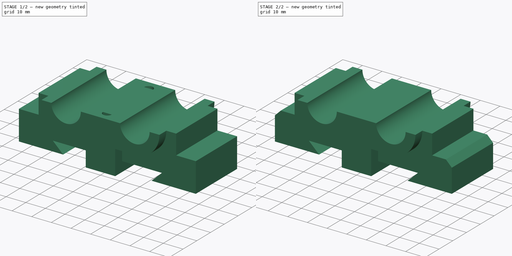
[diagram: build sequence overview — one tinted view per stage of 2, left to right]
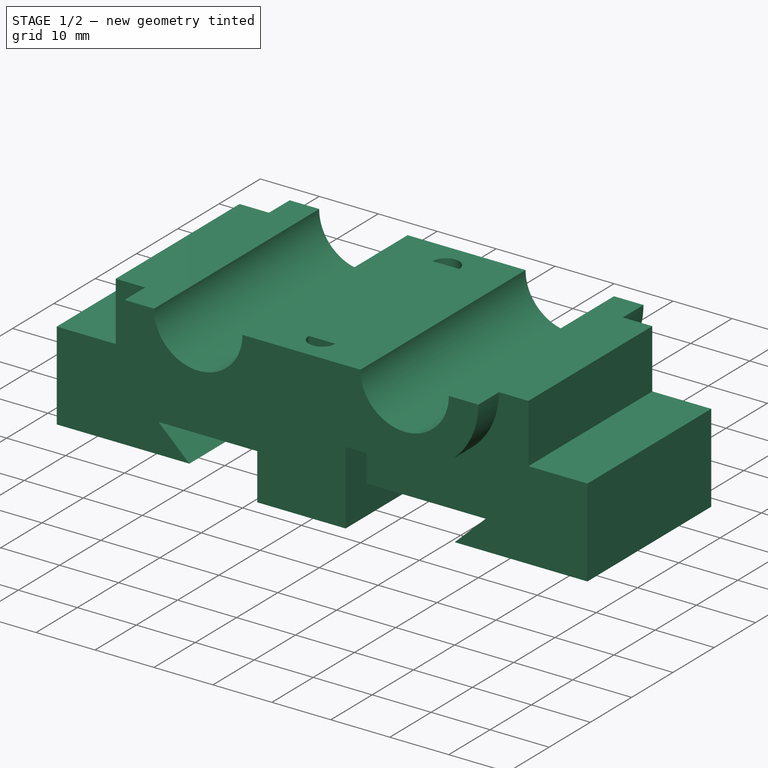
[diagram: stage 1 of 2 — iso view after this stage's code; geometry added in this stage tinted green]
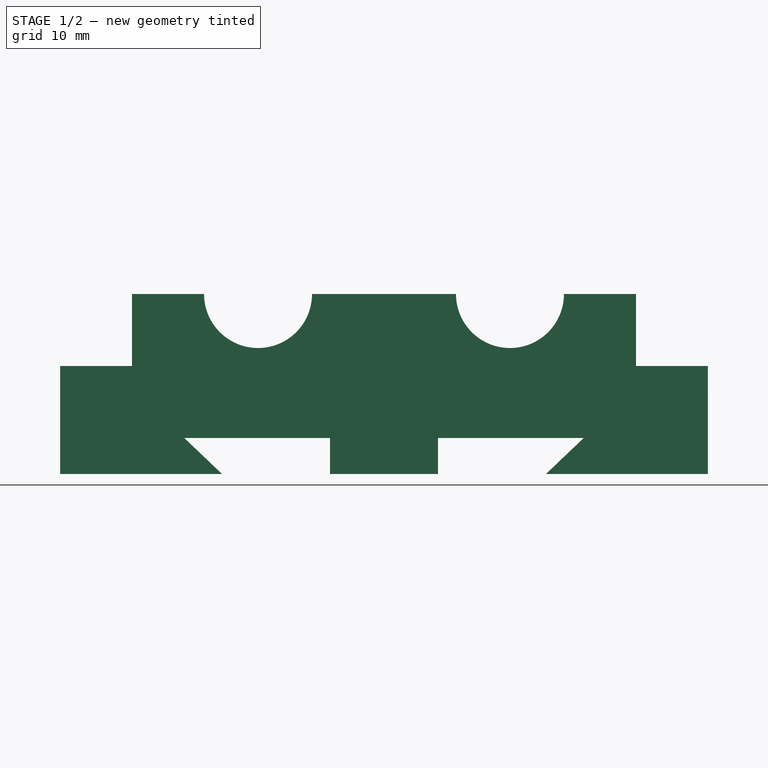
[diagram: stage 1 of 2 — front view after this stage's code; geometry added in this stage tinted green]
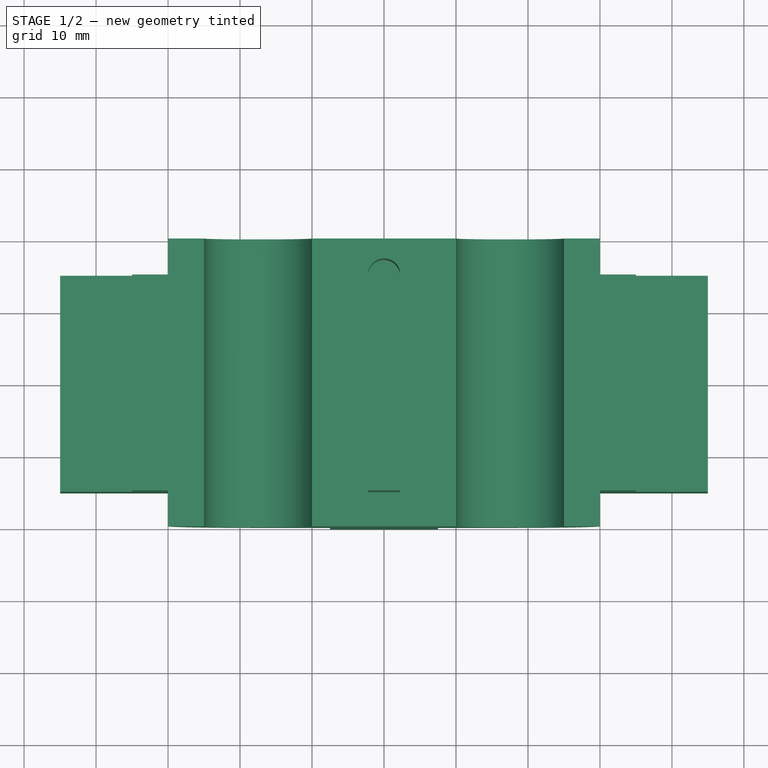
[diagram: stage 1 of 2 — top view after this stage's code; geometry added in this stage tinted green]
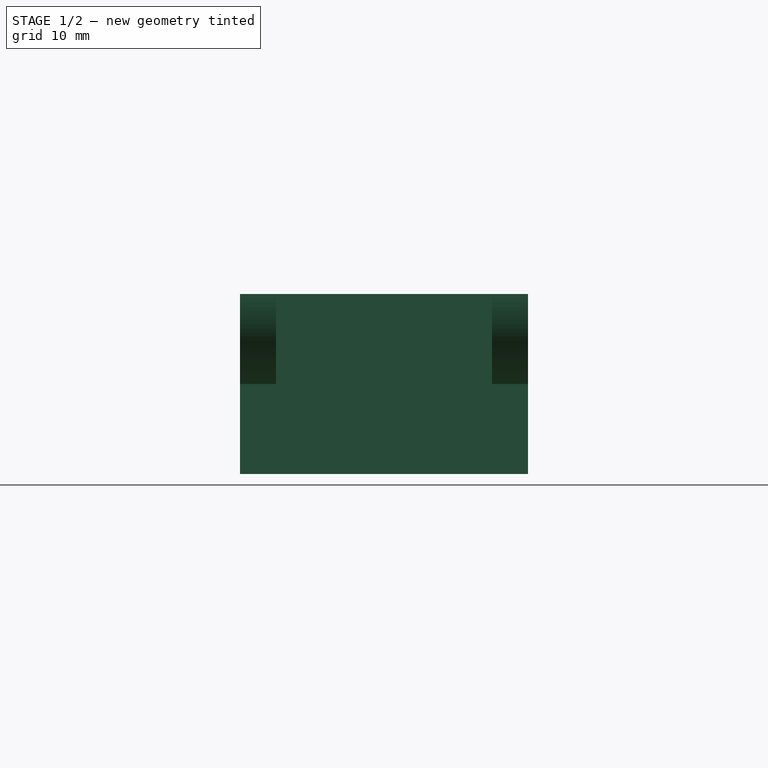
[diagram: stage 1 of 2 — right view after this stage's code; geometry added in this stage tinted green]
FCSTD DOCUMENT  (FreeCAD 0.16RUnknown)
Label: inferior
License: All rights reserved
LicenseURL: http://en.wikipedia.org/wiki/All_rights_reserved
objects: Sketcher::SketchObject×3, PartDesign::Pad×2, PartDesign::Chamfer×1, Part::Feature×1, PartDesign::Pocket×1
note: 11 computed .brp shape members not serialized (recipe doc carries the construction recipe); baked Part::Feature solids carry a one-line shape summary decoded from their .brp

FEATURE [Sketcher::SketchObject] Sketch
  Placement = pos=(0,0,0) rot=(-1,0,0;4.71239rad)
  sketch-geometry (17):
    g0: LineSegment StartX=-27.75 StartY=5 StartZ=0 EndX=27.75 EndY=5 EndZ=0
    g1: LineSegment StartX=22.5 StartY=0 StartZ=0 EndX=45 EndY=0 EndZ=0
    g2: LineSegment StartX=-22.5 StartY=0 StartZ=0 EndX=-45 EndY=0 EndZ=0
    g3: LineSegment StartX=22.5 StartY=0 StartZ=0 EndX=27.75 EndY=5 EndZ=0
    g4: LineSegment StartX=-22.5 StartY=0 StartZ=0 EndX=-27.75 EndY=5 EndZ=0
    g5: LineSegment StartX=45 StartY=0 StartZ=0 EndX=45 EndY=15 EndZ=0
    g6: LineSegment StartX=-45 StartY=0 StartZ=0 EndX=-45 EndY=15 EndZ=0
    g7: LineSegment [constr] StartX=-35 StartY=25 StartZ=0 EndX=35 EndY=25 EndZ=0
    g8: LineSegment StartX=35 StartY=25 StartZ=0 EndX=35 EndY=15 EndZ=0
    g9: LineSegment StartX=35 StartY=15 StartZ=0 EndX=45 EndY=15 EndZ=0
    g10: LineSegment StartX=-35 StartY=25 StartZ=0 EndX=-35 EndY=15 EndZ=0
    g11: LineSegment StartX=-35 StartY=15 StartZ=0 EndX=-45 EndY=15 EndZ=0
    g12: ArcOfCircle CenterX=-17.5 CenterY=25 CenterZ=0 NormalX=0 NormalY=0 NormalZ=1 Radius=7.5 StartAngle=3.14159 EndAngle=6.28319
    g13: ArcOfCircle CenterX=17.5 CenterY=25 CenterZ=0 NormalX=0 NormalY=0 NormalZ=1 Radius=7.5 StartAngle=3.14159 EndAngle=6.28319
    g14: LineSegment StartX=-10 StartY=25 StartZ=0 EndX=10 EndY=25 EndZ=0
    g15: LineSegment StartX=-25 StartY=25 StartZ=0 EndX=-35 EndY=25 EndZ=0
    g16: LineSegment StartX=25 StartY=25 StartZ=0 EndX=35 EndY=25 EndZ=0
  constraints (54):
    c: Horizontal(g0)
    c: PointOnObject(g1,g-1)
    c: PointOnObject(g1,g-1)
    c: PointOnObject(g2,g-1)
    c: PointOnObject(g2,g-1)
    c: DistanceX(g1,g1) = 22.5
    c: DistanceX(g2,g2) = 22.5
    c: DistanceX(g2,g1) = 45
    c: DistanceY(g1,g0) = 5
    c: DistanceX(g0,g0) = 55.5
    c: Coincident(g3,g1)
    c: Coincident(g3,g0)
    c: Coincident(g4,g2)
    c: Coincident(g4,g0)
    c: Symmetric(g0,g0,g-2)
    c: Coincident(g5,g1)
    c: Vertical(g5)
    c: Coincident(g6,g2)
    c: Vertical(g6)
    c: Equal(g5,g6)
    c: DistanceY(g5,g5) = 15
    c: DistanceX(g7,g7) = 70
    c: DistanceY(g2,g7) = 25
    c: Coincident(g7,g8)
    c: Vertical(g8)
    c: Coincident(g8,g9)
    c: Coincident(g9,g5)
    c: Horizontal(g9)
    c: Vertical(g10)
    c: Coincident(g11,g10)
    c: Horizontal(g11)
    c: Coincident(g11,g6)
    c: Coincident(g7,g10)
    c: Symmetric(g10,g8,g-2)
    c: Symmetric(g2,g1,g-2)
    c: PointOnObject(g12,g7)
    c: PointOnObject(g12,g7)
    c: PointOnObject(g12,g7)
    c: PointOnObject(g13,g7)
    c: PointOnObject(g13,g7)
    c: PointOnObject(g13,g7)
    c: Equal(g12,g13)
    c: Symmetric(g12,g13,g-2)
    c: Radius(g13) = 7.5
    c: DistanceX(g12,g13) = 35
    c: PointOnObject(g15,g7)
    c: PointOnObject(g14,g7)
    c: PointOnObject(g14,g7)
    c: Coincident(g15,g12)
    c: Coincident(g7,g15)
    c: Coincident(g7,g16)
    c: Coincident(g13,g16)
    c: Coincident(g12,g14)
    c: Coincident(g13,g14)
FEATURE [PartDesign::Pad] Pad
  Length = 30
  Length2 = 100
  Midplane = true
  Placement = pos=(0,0,0) rot=(-1,0,0;4.71239rad)
  Sketch = -> Sketch
  Type = 0
FEATURE [Part::Feature] Chamfer001
  shape: bbox 90 x 40 x 25 mm, 36 faces (baked)
FEATURE [Sketcher::SketchObject] Sketch002
  Placement = pos=(0,0,25) rot=(0,0,1;0rad)
  Support = -> Chamfer001 [Face33]
  sketch-geometry (6):
    g0: Circle CenterX=0 CenterY=15 CenterZ=0 NormalX=0 NormalY=0 NormalZ=1 Radius=2.25
    g1: Circle CenterX=0 CenterY=-15 CenterZ=0 NormalX=0 NormalY=0 NormalZ=1 Radius=2.25
    g2: Circle CenterX=-30 CenterY=7.5 CenterZ=0 NormalX=0 NormalY=0 NormalZ=1 Radius=2.25
    g3: Circle CenterX=-30 CenterY=-7.5 CenterZ=0 NormalX=0 NormalY=0 NormalZ=1 Radius=2.25
    g4: Circle CenterX=30 CenterY=7.5 CenterZ=0 NormalX=0 NormalY=0 NormalZ=1 Radius=2.25
    g5: Circle CenterX=30 CenterY=-7.5 CenterZ=0 NormalX=0 NormalY=0 NormalZ=1 Radius=2.25
  constraints (15):
    c: PointOnObject(g0,g-2)
    c: PointOnObject(g1,g-2)
    c: Radius(g5) = 2.25
    c: Equal(g5,g4)
    c: Equal(g5,g1)
    c: Equal(g5,g0)
    c: Equal(g5,g2)
    c: Equal(g5,g3)
    c: Symmetric(g5,g4,g-1)
    c: Symmetric(g2,g3,g-1)
    c: Symmetric(g2,g4,g-2)
    c: Symmetric(g1,g0,g-1)
    c: DistanceY(g1,g0) = 30
    c: DistanceX(g3,g5) = 60
    c: DistanceY(g3,g2) = 15
FEATURE [PartDesign::Pocket] Pocket
  Length = 15
  Sketch = -> Sketch002
  Type = 0
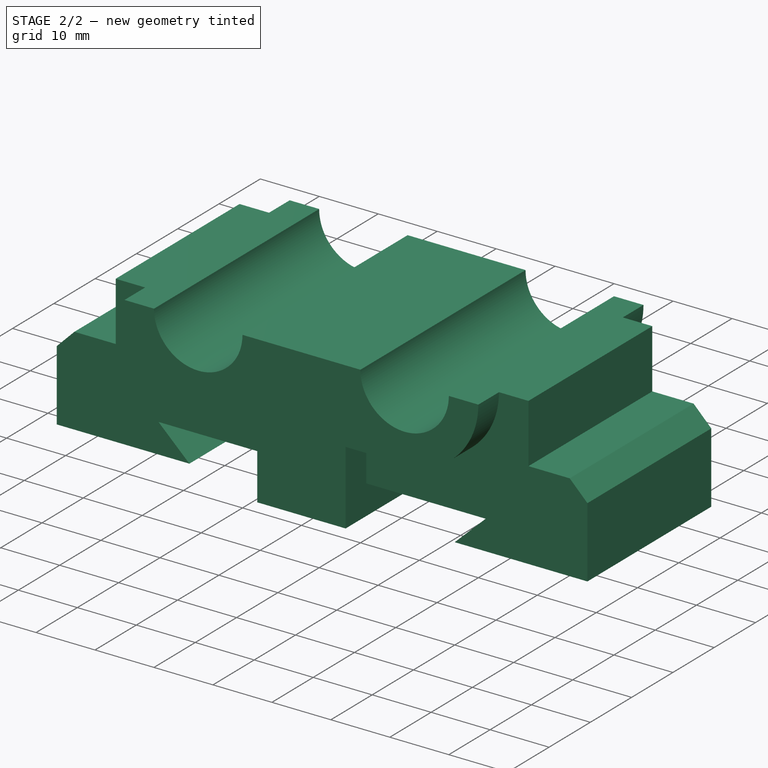
[diagram: stage 2 of 2 — iso view after this stage's code; geometry added in this stage tinted green]
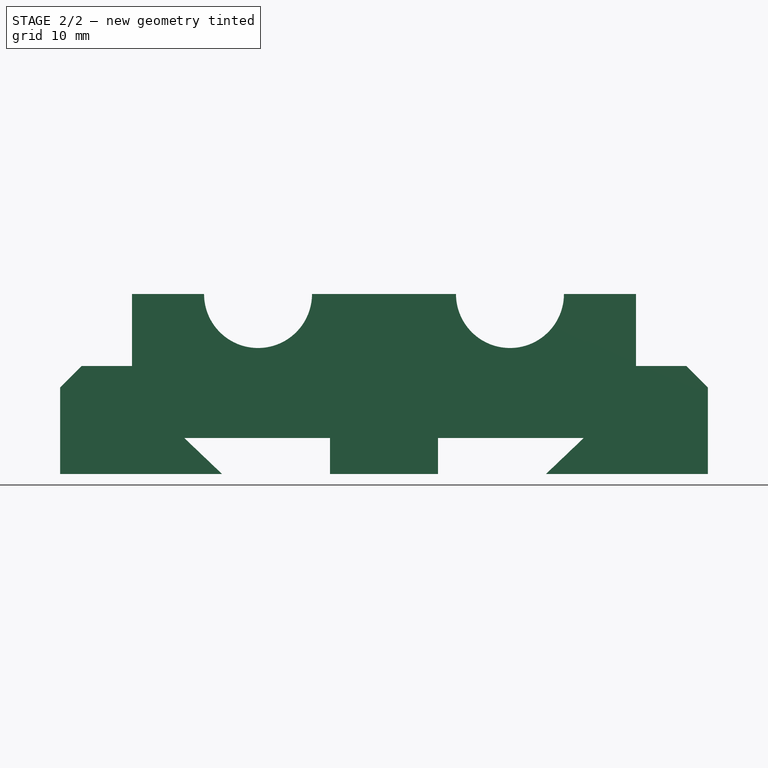
[diagram: stage 2 of 2 — front view after this stage's code; geometry added in this stage tinted green]
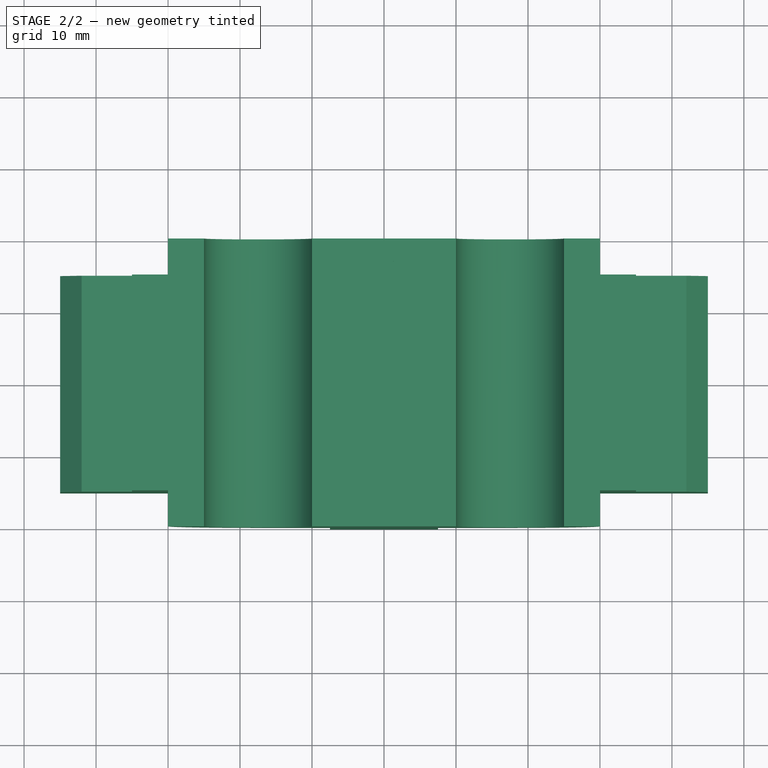
[diagram: stage 2 of 2 — top view after this stage's code; geometry added in this stage tinted green]
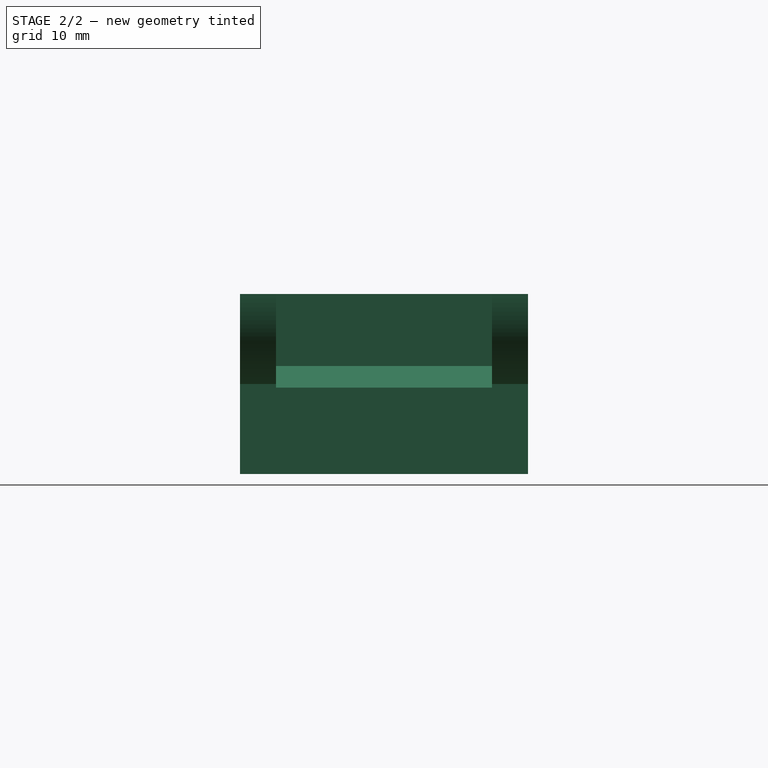
[diagram: stage 2 of 2 — right view after this stage's code; geometry added in this stage tinted green]
FEATURE [Sketcher::SketchObject] Sketch001
  ExternalGeometry = -> [Pad]
  Placement = pos=(0,-15,0) rot=(1,0,0;1.5708rad)
  Support = -> Pad [Face18]
  sketch-geometry (12):
    g0: ArcOfCircle CenterX=-17.5 CenterY=25 CenterZ=0 NormalX=0 NormalY=0 NormalZ=1 Radius=7.5 StartAngle=3.14159 EndAngle=6.28319
    g1: ArcOfCircle CenterX=17.5 CenterY=25 CenterZ=0 NormalX=0 NormalY=0 NormalZ=1 Radius=7.5 StartAngle=3.14159 EndAngle=6.28319
    g2: LineSegment StartX=-17.5 StartY=12.5 StartZ=0 EndX=-7.5 EndY=12.5 EndZ=0
    g3: ArcOfCircle CenterX=17.5 CenterY=25 CenterZ=0 NormalX=0 NormalY=0 NormalZ=1 Radius=12.5 StartAngle=4.71239 EndAngle=6.28319
    g4: ArcOfCircle CenterX=-17.5 CenterY=25 CenterZ=0 NormalX=0 NormalY=0 NormalZ=1 Radius=12.5 StartAngle=3.14159 EndAngle=4.71239
    g5: LineSegment StartX=25 StartY=25 StartZ=0 EndX=30 EndY=25 EndZ=0
    g6: LineSegment StartX=-25 StartY=25 StartZ=0 EndX=-30 EndY=25 EndZ=0
    g7: LineSegment StartX=7.5 StartY=12.5 StartZ=0 EndX=7.5 EndY=0 EndZ=0
    g8: LineSegment StartX=7.5 StartY=0 StartZ=0 EndX=-7.5 EndY=0 EndZ=0
    g9: LineSegment StartX=-7.5 StartY=0 StartZ=0 EndX=-7.5 EndY=12.5 EndZ=0
    g10: LineSegment StartX=7.5 StartY=12.5 StartZ=0 EndX=17.5 EndY=12.5 EndZ=0
    g11: LineSegment StartX=-10 StartY=25 StartZ=0 EndX=10 EndY=25 EndZ=0
  constraints (32):
    c: Coincident(g3,g1)
    c: Coincident(g3,g10)
    c: Coincident(g4,g0)
    c: Coincident(g4,g2)
    c: Tangent(g2,g4)
    c: Tangent(g3,g2)
    c: Radius(g3) = 12.5
    c: Equal(g3,g4)
    c: Coincident(g5,g1)
    c: Horizontal(g6)
    c: Horizontal(g5)
    c: Coincident(g7,g8)
    c: Coincident(g8,g9)
    c: Horizontal(g8)
    c: Vertical(g7)
    c: Vertical(g9)
    c: Symmetric(g7,g8,g-2)
    c: PointOnObject(g7,g-1)
    c: Coincident(g3,g5)
    c: Coincident(g4,g6)
    c: Coincident(g2,g9)
    c: Coincident(g10,g7)
    c: Tangent(g2,g10)
    c: DistanceX(g2,g7) = 15
    c: Coincident(g1,g11)
    c: Coincident(g0,g11)
    c: Coincident(g0,g-4)
    c: Coincident(g1,g-3)
    c: Coincident(g1,g-3)
    c: DistanceY(g0,g6) = 0
    c: Coincident(g0,g6)
    c: Coincident(g0,g-4)
FEATURE [PartDesign::Pad] Pad001
  Length = 5
  Length2 = 35
  Placement = pos=(0,0,0) rot=(-1,0,0;4.71239rad)
  Sketch = -> Sketch001
  Type = 4
FEATURE [PartDesign::Chamfer] Chamfer
  Base = -> Pad001 [Edge114,Edge25]
  Placement = pos=(0,0,0) rot=(-1,0,0;4.71239rad)
  Size = 3
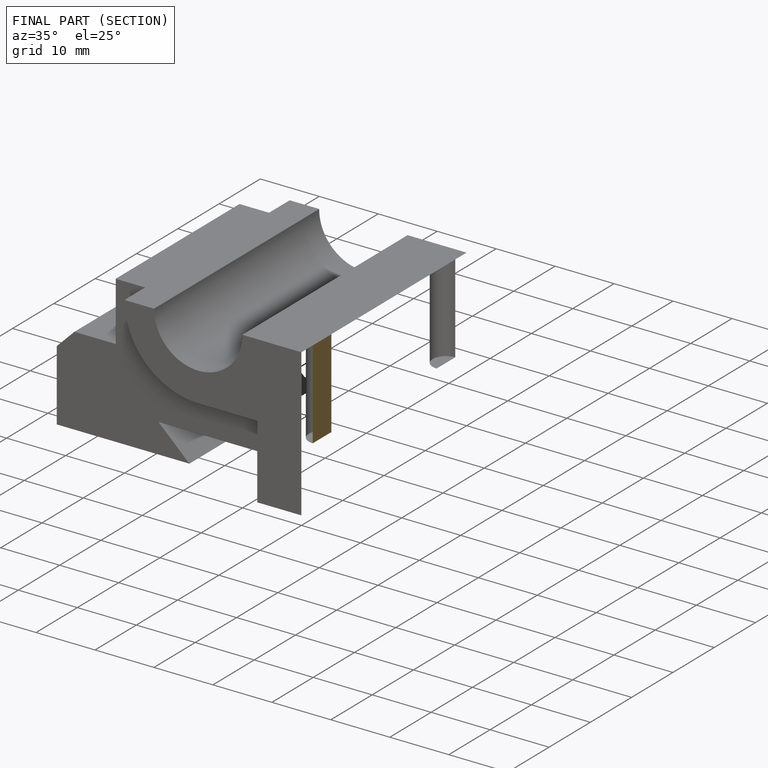
[diagram: finished part — half-section view (interior)]
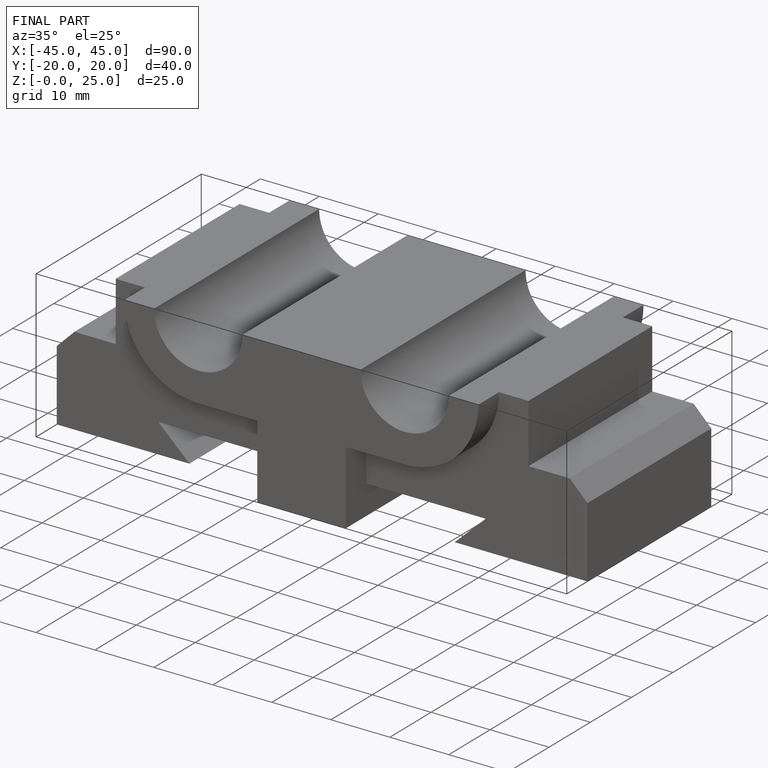
[diagram: finished part — iso view with bounding-box wireframe]
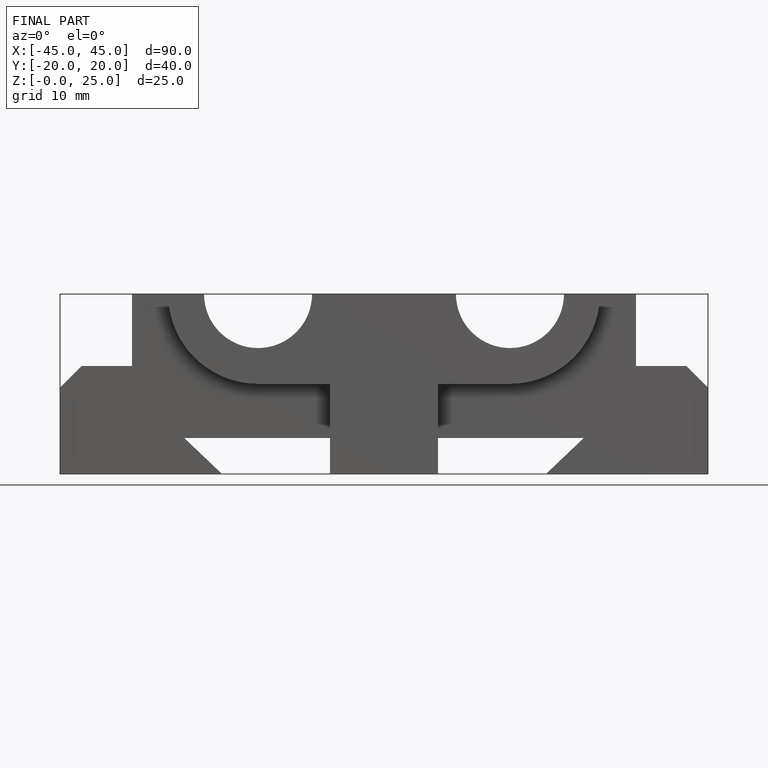
[diagram: finished part — front view with bounding-box wireframe]
